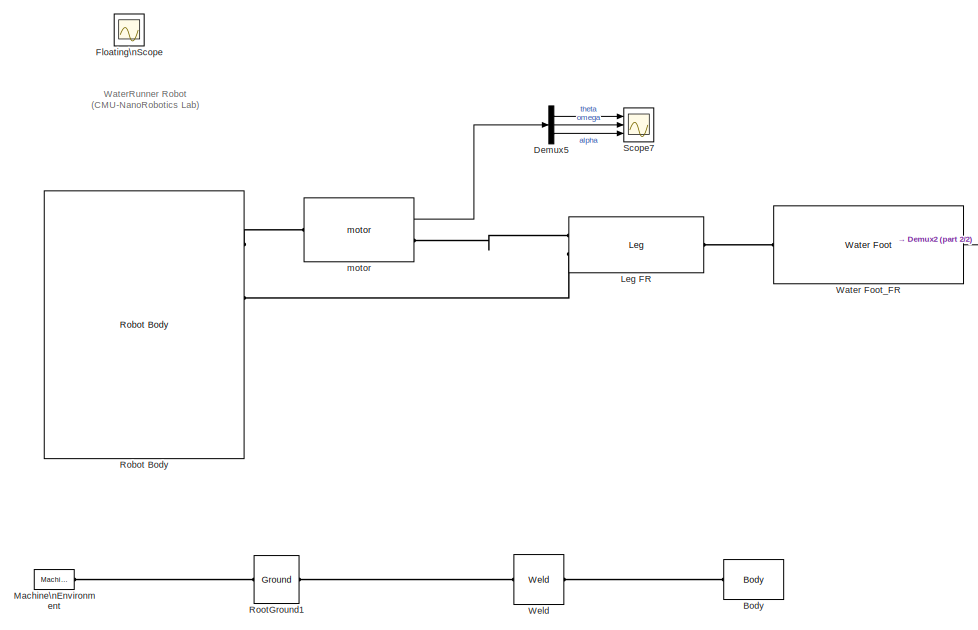
[diagram: root canvas - part 1/2, central region]
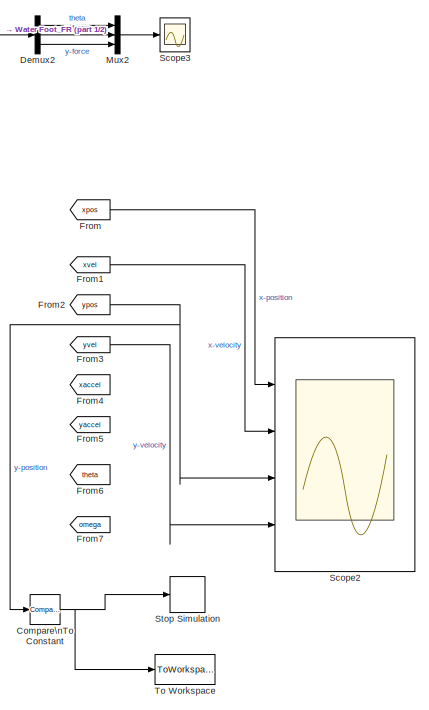
[diagram: root canvas - part 2/2, right side, full height]
MODEL WaterRunner_oneleg
KIND model
BLOCK [Reference] Body  REF=mblibv1/Bodies/Body
  AttachedToCS = CG
  BodyColor = [0.83137 0.81569 0.78431]
  BodyColorSelMode = COLORPALETTE
  CG = Left$CG$[0 0 0]$WORLD$WORLD$m$[0 0 0]$Euler X-Y-Z$deg$WORLD$true$none
  CGPos = [0 0 0]
  CGRot = [0 0 0]
  CS0Pos = []
  CS0Rot = []
  CS10Pos = []
  CS10Rot = []
  CS11Pos = []
  CS11Rot = []
  CS12Pos = []
  CS12Rot = []
  CS13Pos = []
  CS13Rot = []
  CS14Pos = []
  CS14Rot = []
  CS15Pos = []
  CS15Rot = []
  CS16Pos = []
  CS16Rot = []
  CS17Pos = []
  CS17Rot = []
  CS18Pos = []
  CS18Rot = []
  CS19Pos = []
  CS19Rot = []
  CS1Pos = [-0.5 water_level -0.2 ]
  CS1Rot = [0 0 0]
  CS20Pos = []
  CS20Rot = []
  CS2Pos = [-0.5 water_level 0.2 ]
  CS2Rot = [0 0 0]
  CS3Pos = [4 water_level -0.2 ]
  CS3Rot = [0 0 0]
  CS4Pos = [4 water_level 0.2 ]
  CS4Rot = [0 0 0]
  CS5Pos = []
  CS5Rot = []
  CS6Pos = []
  CS6Rot = []
  CS7Pos = []
  CS7Rot = []
  CS8Pos = []
  CS8Rot = []
  CS9Pos = []
  CS9Rot = []
  ClassName = Body
  Density = 1
  DensityUnits = kg/m^3
  DensityUse = false
  DialogClass = MechanicalBodyBlock
  GraphicsMode = CONVHULL
  Inertia = eye(3)
  InertiaUnits = kg*m^2
  LConnTagsString = CG
  Mass = 1
  MassUnits = kg
  Ports = [0, 0, 0, 0, 0, 1]
  SID = 276
  Shape = Cylinder
  ShapeDims = [1 1]
  ShapeUnits = m
  ShapeUse = false
  SourceBlock = mblibv1/Bodies/Body
  SourceType = Body
  UpdateFromCAD = off
  WorkingFrames = Left$CS1$[-0.5 water_level -0.2 ]$CG$CG$m$[0 0 0]$Euler X-Y-Z$deg$WORLD$false$none#Left$CS2$[-0.5 water_level 0.2 ]$CG$CG$m$[0 0 0]$Euler X-Y-Z$deg$WORLD$false$none#Left$CS3$[4 water_level -0.2 ]$CG$CG$m$[0 0 0]$Euler X-Y-Z$deg$WORLD$false$none#Left$CS4$[4 water_level 0.2 ]$CG$CG$m$[0 0 0]$Euler X-Y-Z$deg$WORLD$false$none
BLOCK [Reference] Compare\nTo Constant  REF=simulink/Logic and Bit\nOperations/Compare\nTo Constant
  OutDataTypeStr = boolean
  Ports = [1, 1]
  SID = 1377
  SourceBlock = simulink/Logic and Bit\nOperations/Compare\nTo Constant
  SourceType = Compare To Constant
  ZeroCross = on
  const = -.03
  relop = <
BLOCK [Demux] Demux2
  DisplayOption = bar
  Outputs = 3
  Ports = [1, 3]
  SID = 1311
BLOCK [Demux] Demux5
  DisplayOption = bar
  Outputs = 3
  Ports = [1, 3]
  SID = 1400
BLOCK [Scope] Floating\nScope
  DataFormat = StructureWithTime
  Floating = on
  IOType = viewer
  NumInputPorts = 1
  Ports = []
  SID = 1208
  SampleTime = 0
  SaveName = ScopeData1
  ShowLegends = off
BLOCK [From] From
  GotoTag = xpos
  SID = 1245
  TagVisibility = global
BLOCK [From] From1
  GotoTag = xvel
  SID = 1251
  TagVisibility = global
BLOCK [From] From2
  GotoTag = ypos
  SID = 1266
  TagVisibility = global
BLOCK [From] From3
  GotoTag = yvel
  SID = 1267
  TagVisibility = global
BLOCK [From] From4
  GotoTag = xaccel
  SID = 1373
  TagVisibility = global
BLOCK [From] From5
  GotoTag = yaccel
  SID = 1374
  TagVisibility = global
BLOCK [From] From6
  GotoTag = theta
  SID = 1444
  TagVisibility = global
BLOCK [From] From7
  GotoTag = omega
  SID = 1445
  TagVisibility = global
BLOCK [Reference] Leg FR  REF=WaterRunner_lib/Leg
  Ports = [0, 0, 0, 0, 0, 2, 1]
  SID = 1368
  SourceBlock = WaterRunner_lib/Leg
BLOCK [Reference] Machine\nEnvironment  REF=mblibv1/Bodies/Machine\nEnvironment
  AnalysisType = Forward dynamics
  AngularAssemblyTolerance = 1e-3
  AngularAssemblyToleranceUnits = rad
  BodyColorSelMode = Use model default
  BodyVisualizationType = Use model default body geometries
  ClassName = Environment
  ConstraintAbsTolerance = 1e-4
  ConstraintRelTolerance = 1e-4
  ConstraintSolverType = Stabilizing
  DefaultBodyColor = [1 0 0]
  DialogTemplateClass = MECH.MachineEnvironment
  Dimensionality = Auto-detect
  Gravity = [0 -9.81 0]
  GravityAsSignal = off
  GravityUnits = m/s^2
  LinearAssemblyTolerance = 1e-3
  LinearAssemblyToleranceUnits = m
  PerturbationSize = 1e-5
  PhysicalDomain = Mechanical
  PortType = env
  Ports = [0, 0, 0, 0, 0, 0, 1]
  RedundancyAnalysisTolerance = 1e-14
  RedundancyAnalysisToleranceType = Automatically select tolerance
  SID = 1329
  SourceBlock = mblibv1/Bodies/Machine\nEnvironment
  SourceType = Machine Environment
  StatePerturbationType = Fixed
  SyncWhenCopied = off
  UseRobustSingularityHandling = off
  VisualizeMachine = on
BLOCK [Mux] Mux2
  DisplayOption = bar
  Inputs = 3
  Ports = [3, 1]
  SID = 1312
BLOCK [Reference] Robot Body  REF=WaterRunner_lib/Robot Body
  Ports = [0, 0, 0, 0, 0, 5, 4]
  SID = 1291
  SourceBlock = WaterRunner_lib/Robot Body
  initRobHeight = initRobHeight
BLOCK [Reference] RootGround1  REF=mblibv1/Bodies/Ground
  ClassName = Ground
  CoordPosition = [0 0 0]
  CoordPositionUnits = m
  DialogClass = GroundBlock
  LeftPortType = env
  MachineId = [3 0]
  PhysicalDomain = Mechanical
  Ports = [0, 0, 0, 0, 0, 1, 1]
  RightPortType = workingframe
  SID = 275
  ShowEnvPort = on
  SourceBlock = mblibv1/Bodies/Ground
  SourceType = Ground
  StateVectorMgrId = 4
  UpdateFromCAD = on
  UserData = DataTag0
  UserDataPersistent = on
BLOCK [Scope] Scope2
  DataFormat = StructureWithTime
  Floating = off
  LegendLocations = 0.85401     0.76365     0.10246    0.037821\n0.85301     0.57295      0.1034    0.037821\n0.85301     0.38225      0.1034    0.037821\n0.85202     0.19155     0.10434    0.037821
  LimitDataPoints = off
  NumInputPorts = 4
  Ports = [4]
  SID = 1246
  SampleTime = 0
  SaveName = position
  SaveToWorkspace = on
  ShowLegends = on
  TimeRange = 2
  YMax = 20~25~0.4~3.5
  YMin = -12.5~-20~-0.05~-2
  ZoomMode = xonly
BLOCK [Scope] Scope3
  DataFormat = StructureWithTime
  Floating = off
  LegendLocations = 0.86642     0.92507    0.089235     0.10023
  LimitDataPoints = off
  NumInputPorts = 1
  Ports = [1]
  SID = 1313
  SampleTime = 0
  SaveName = FootForce_FR
  SaveToWorkspace = on
  ShowLegends = on
  TimeRange = 2
  YMax = 6
  YMin = -2
  ZoomMode = xonly
BLOCK [Scope] Scope7
  DataFormat = StructureWithTime
  Floating = off
  LimitDataPoints = off
  NumInputPorts = 3
  Ports = [3]
  SID = 1402
  SampleTime = 0
  SaveName = MotorMotion
  ShowLegends = off
  TimeRange = 2
  YMax = 0~0~30000
  YMin = -17.5~-90~-70000
  ZoomMode = yonly
BLOCK [Stop] Stop Simulation
  SID = 1376
BLOCK [ToWorkspace] To Workspace
  MaxDataPoints = inf
  Ports = [1]
  SID = 1380
  SampleTime = -1
  SaveFormat = Timeseries
  VariableName = stopped
BLOCK [Reference] Water Foot_FR  REF=WaterRunner_lib/Water Foot
  Ports = [0, 1, 0, 0, 0, 1]
  SID = 1309
  SourceBlock = WaterRunner_lib/Water Foot
  SourceType = SubSystem
BLOCK [Reference] Weld  REF=mblibv1/Joints/Weld
  ClassName = Joint
  CutJoint = off
  DialogClass = JointBlock
  LConnTagsString = __newl0
  MarkAsCut = off
  NumSAPorts = 0
  Ports = [0, 0, 0, 0, 0, 1, 1]
  PrimitiveProps = W$WORLD$[0 0 0]$weld
  Primitives = weld
  RConnTagsString = __newr0
  SID = 274
  SourceBlock = mblibv1/Joints/Weld
  SourceType = Weld
  UpdateFromCAD = off
  WAxis = [0 0 0]
BLOCK [Reference] motor  REF=WaterRunner_lib/motor
  Ports = [0, 1, 0, 0, 0, 1, 1]
  SID = 1420
  SourceBlock = WaterRunner_lib/motor
  ic_angle = 0
  variableName = work_FR
ANNOTATION (root): WaterRunner Robot\n(CMU-NanoRobotics Lab)
NET Compare\nTo Constant:1 -> Stop Simulation:1, To Workspace:1
LINE Demux2:1 -> Mux2:1
LINE Demux2:2 -> Mux2:2
LINE Demux2:3 -> Mux2:3
LINE Demux5:1 -> Scope7:1
LINE Demux5:2 -> Scope7:2
LINE Demux5:3 -> Scope7:3
LINE From1:1 -> Scope2:2
NET From2:1 -> Compare\nTo Constant:1, Scope2:3
LINE From3:1 -> Scope2:4
LINE From:1 -> Scope2:1
LINE Mux2:1 -> Scope3:1
LINE Water Foot_FR:1 -> Demux2:1
LINE motor:1 -> Demux5:1
PLINE Body:LConn1 -- Weld:RConn1
PLINE Leg FR:LConn1 -- motor:RConn1
PLINE Leg FR:LConn2 -- Robot Body:RConn2
PLINE Leg FR:RConn1 -- Water Foot_FR:LConn1
PLINE Machine\nEnvironment:RConn1 -- RootGround1:LConn1
PLINE Robot Body:RConn1 -- motor:LConn1
PLINE RootGround1:RConn1 -- Weld:LConn1
note: NET lines group one-source signal fan-out (src -> all destinations, sorted); 1:1 wires keep LINE
